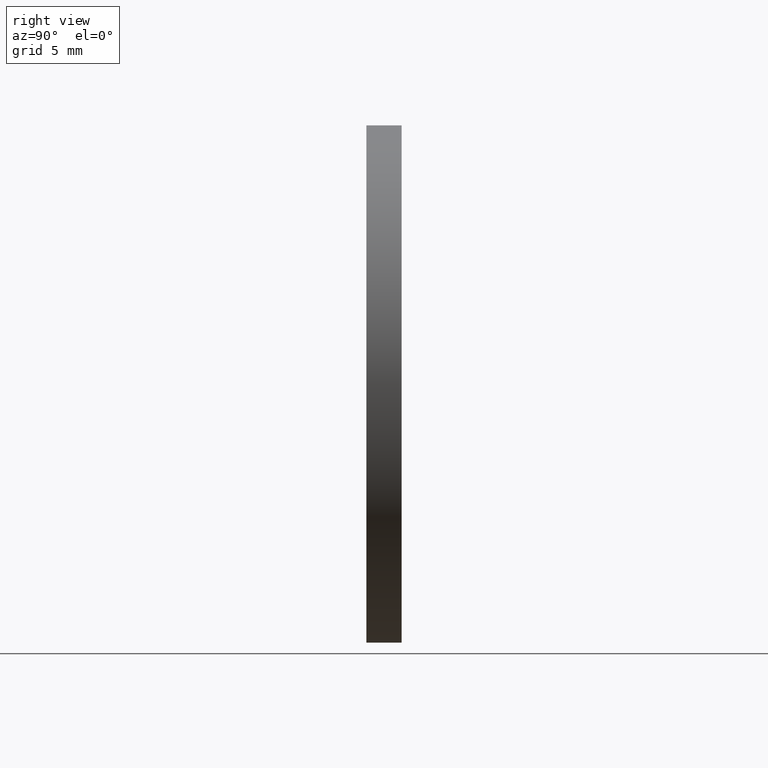
[diagram: clean part render]
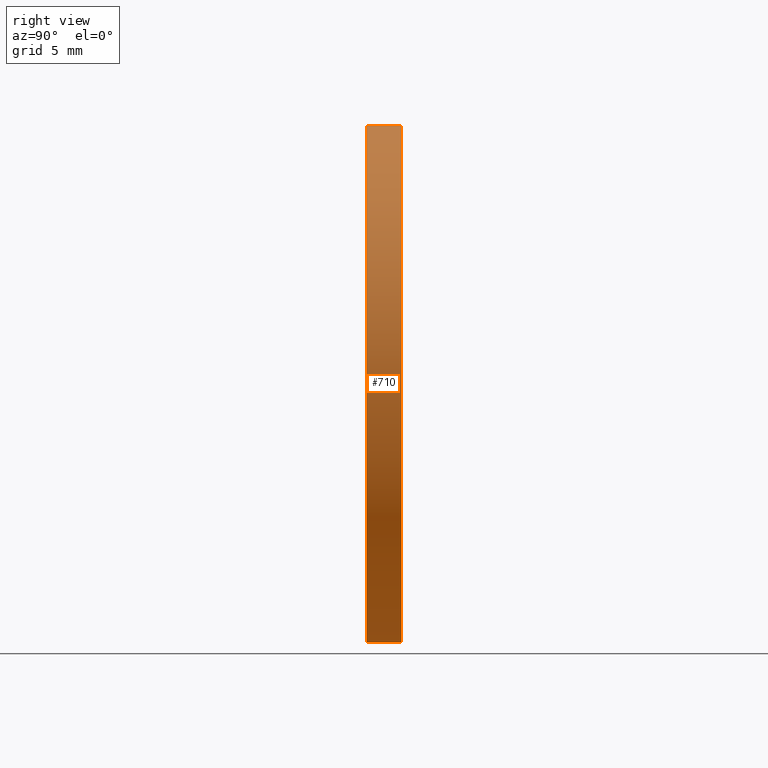
[diagram: same view with one face highlighted and labeled with its STEP entity id]
A machine part, right view. The second image highlights one B-rep face of the part: STEP entity #710.
In plain terms, the highlighted cylindrical surface (partial cylindrical patch) has radius 11 mm, axis along (-0, -1, -0).
Its self-contained STEP definition (entity closure, byte-faithful):
#710 = ADVANCED_FACE ( 'NONE', ( #7330 ), #7173, .T. ) ;
#807 = VERTEX_POINT ( 'NONE', #11423 ) ;
#957 = AXIS2_PLACEMENT_3D ( 'NONE', #1519, #5957, #5764 ) ;
#1519 = CARTESIAN_POINT ( 'NONE',  ( 0.0000000000000000000, 1.500000000000000000, 0.0000000000000000000 ) ) ;
#1540 = VECTOR ( 'NONE', #1652, 1000.000000000000000 ) ;
#1629 = VECTOR ( 'NONE', #3184, 1000.000000000000000 ) ;
#1652 = DIRECTION ( 'NONE',  ( -0.0000000000000000000, -1.000000000000000000, -0.0000000000000000000 ) ) ;
#2719 = ORIENTED_EDGE ( 'NONE', *, *, #5658, .T. ) ;
#2948 = CARTESIAN_POINT ( 'NONE',  ( 0.0000000000000000000, 0.0000000000000000000, 0.0000000000000000000 ) ) ;
#3157 = AXIS2_PLACEMENT_3D ( 'NONE', #2948, #10509, #5137 ) ;
#3184 = DIRECTION ( 'NONE',  ( -0.0000000000000000000, -1.000000000000000000, -0.0000000000000000000 ) ) ;
#3532 = CARTESIAN_POINT ( 'NONE',  ( 1.347111479062088400E-015, 1.500000000000000000, 11.00000000000000000 ) ) ;
#3725 = CIRCLE ( 'NONE', #3157, 11.00000000000000000 ) ;
#3741 = DIRECTION ( 'NONE',  ( 0.0000000000000000000, 0.0000000000000000000, 1.000000000000000000 ) ) ;
#4335 = EDGE_CURVE ( 'NONE', #8209, #7552, #9129, .T. ) ;
#4692 = ORIENTED_EDGE ( 'NONE', *, *, #13254, .F. ) ;
#5137 = DIRECTION ( 'NONE',  ( 0.0000000000000000000, 0.0000000000000000000, 1.000000000000000000 ) ) ;
#5658 = EDGE_CURVE ( 'NONE', #807, #7552, #3725, .T. ) ;
#5667 = ORIENTED_EDGE ( 'NONE', *, *, #13461, .T. ) ;
#5676 = LINE ( 'NONE', #13874, #1629 ) ;
#5764 = DIRECTION ( 'NONE',  ( 0.0000000000000000000, 0.0000000000000000000, -1.000000000000000000 ) ) ;
#5957 = DIRECTION ( 'NONE',  ( -0.0000000000000000000, -1.000000000000000000, -0.0000000000000000000 ) ) ;
#7173 = CYLINDRICAL_SURFACE ( 'NONE', #957, 11.00000000000000000 ) ;
#7257 = VERTEX_POINT ( 'NONE', #3532 ) ;
#7330 = FACE_OUTER_BOUND ( 'NONE', #11827, .T. ) ;
#7552 = VERTEX_POINT ( 'NONE', #11506 ) ;
#8151 = DIRECTION ( 'NONE',  ( 0.0000000000000000000, 1.000000000000000000, 0.0000000000000000000 ) ) ;
#8209 = VERTEX_POINT ( 'NONE', #11539 ) ;
#9129 = LINE ( 'NONE', #11472, #1540 ) ;
#10183 = CARTESIAN_POINT ( 'NONE',  ( 0.0000000000000000000, 1.500000000000000000, 0.0000000000000000000 ) ) ;
#10509 = DIRECTION ( 'NONE',  ( 0.0000000000000000000, 1.000000000000000000, 0.0000000000000000000 ) ) ;
#10572 = ORIENTED_EDGE ( 'NONE', *, *, #4335, .F. ) ;
#11423 = CARTESIAN_POINT ( 'NONE',  ( 1.347111479062088400E-015, 0.0000000000000000000, 11.00000000000000000 ) ) ;
#11472 = CARTESIAN_POINT ( 'NONE',  ( 0.0000000000000000000, 1.500000000000000000, -11.00000000000000000 ) ) ;
#11506 = CARTESIAN_POINT ( 'NONE',  ( 0.0000000000000000000, 0.0000000000000000000, -11.00000000000000000 ) ) ;
#11539 = CARTESIAN_POINT ( 'NONE',  ( 0.0000000000000000000, 1.500000000000000000, -11.00000000000000000 ) ) ;
#11827 = EDGE_LOOP ( 'NONE', ( #4692, #5667, #2719, #10572 ) ) ;
#12304 = AXIS2_PLACEMENT_3D ( 'NONE', #10183, #8151, #3741 ) ;
#13254 = EDGE_CURVE ( 'NONE', #7257, #8209, #13974, .T. ) ;
#13461 = EDGE_CURVE ( 'NONE', #7257, #807, #5676, .T. ) ;
#13874 = CARTESIAN_POINT ( 'NONE',  ( 1.347111479062088400E-015, 1.500000000000000000, 11.00000000000000000 ) ) ;
#13974 = CIRCLE ( 'NONE', #12304, 11.00000000000000000 ) ;